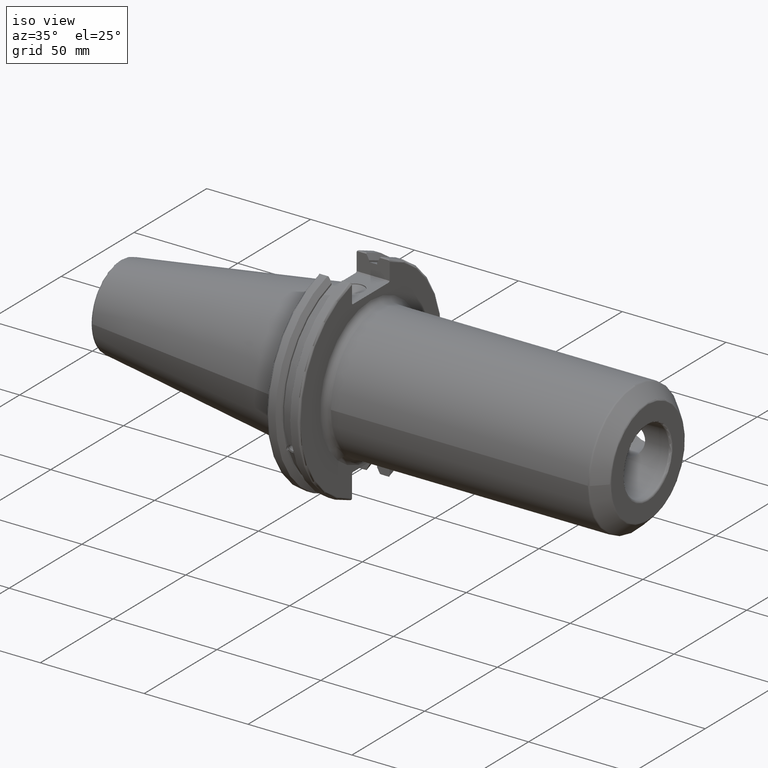
[diagram: clean part render]
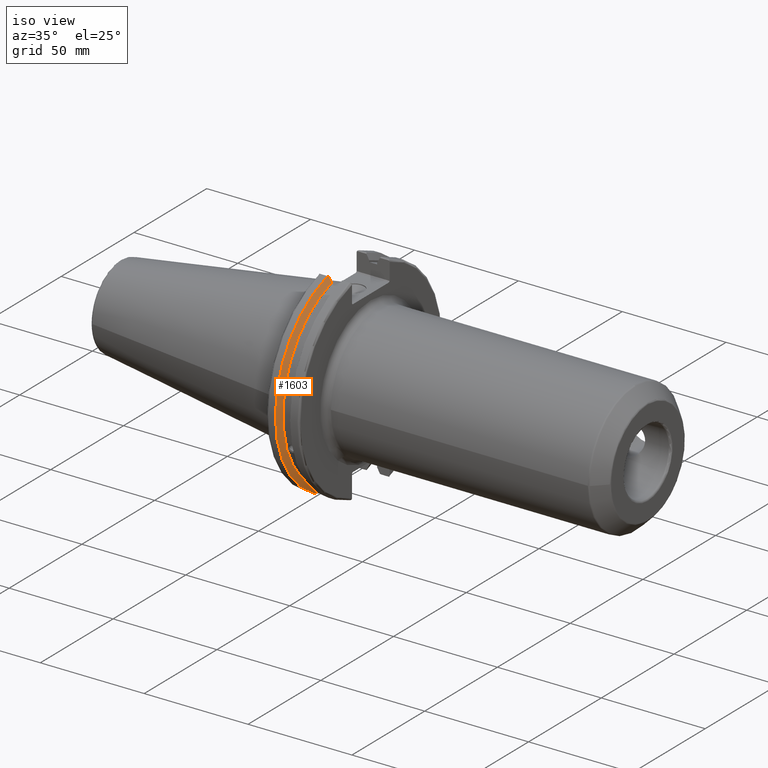
[diagram: same view with one face highlighted and labeled with its STEP entity id]
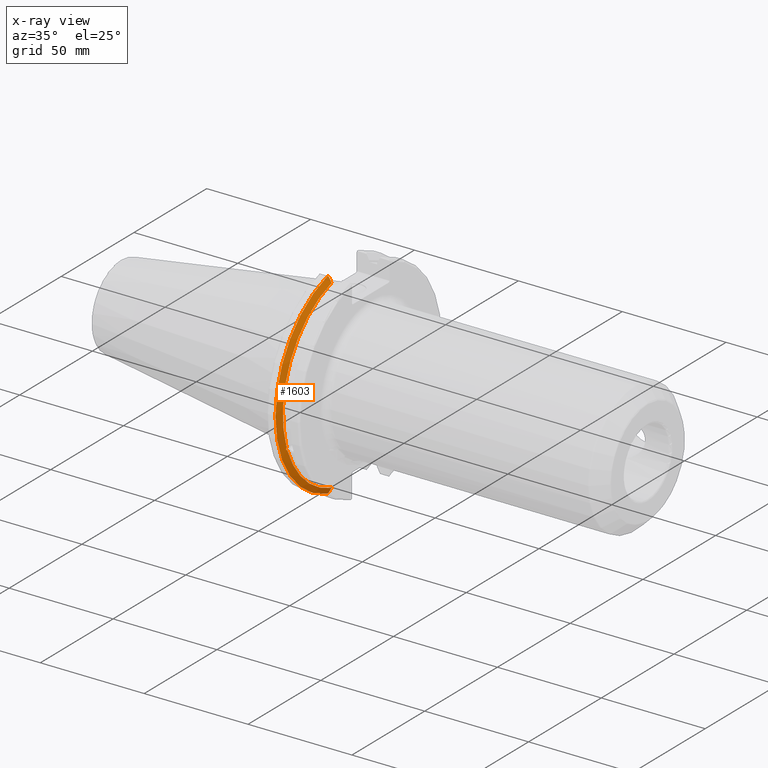
[diagram: x-ray of the same camera — body ghosted, the highlighted face saturated]
A machine part, iso view. The second image highlights one B-rep face of the part: STEP entity #1603.
The next image is the same camera in x-ray: the body ghosted, the highlighted face saturated — about 0% of this face is hidden behind the body in this view.
In plain terms, the highlighted conical surface has half-angle 60 deg.
Its self-contained STEP definition (entity closure, byte-faithful):
#24=(
BOUNDED_CURVE()
B_SPLINE_CURVE(2,(#3161,#3162,#3163),.UNSPECIFIED.,.F.,.F.)
B_SPLINE_CURVE_WITH_KNOTS((3,3),(0.,0.275823910673799),.UNSPECIFIED.)
CURVE()
GEOMETRIC_REPRESENTATION_ITEM()
RATIONAL_B_SPLINE_CURVE((1.,1.00038235574547,1.00012873636808))
REPRESENTATION_ITEM('')
);
#25=(
BOUNDED_CURVE()
B_SPLINE_CURVE(2,(#3173,#3174,#3175),.UNSPECIFIED.,.F.,.F.)
B_SPLINE_CURVE_WITH_KNOTS((3,3),(0.0558332664508419,0.331657177124507),
 .UNSPECIFIED.)
CURVE()
GEOMETRIC_REPRESENTATION_ITEM()
RATIONAL_B_SPLINE_CURVE((1.00012873636699,1.00038235574223,1.))
REPRESENTATION_ITEM('')
);
#26=(
BOUNDED_CURVE()
B_SPLINE_CURVE(2,(#3208,#3209,#3210),.UNSPECIFIED.,.F.,.F.)
B_SPLINE_CURVE_WITH_KNOTS((3,3),(0.,0.064824047289869),.UNSPECIFIED.)
CURVE()
GEOMETRIC_REPRESENTATION_ITEM()
RATIONAL_B_SPLINE_CURVE((1.,1.00011477674823,1.00019140645925))
REPRESENTATION_ITEM('')
);
#27=(
BOUNDED_CURVE()
B_SPLINE_CURVE(2,(#3216,#3217,#3218),.UNSPECIFIED.,.F.,.F.)
B_SPLINE_CURVE_WITH_KNOTS((3,3),(0.325260944932363,0.390084992222202),
 .UNSPECIFIED.)
CURVE()
GEOMETRIC_REPRESENTATION_ITEM()
RATIONAL_B_SPLINE_CURVE((1.00019140645909,1.00011477674813,1.))
REPRESENTATION_ITEM('')
);
#53=CONICAL_SURFACE('',#1789,47.8172386482472,1.0471975511966);
#198=FACE_OUTER_BOUND('',#311,.T.);
#311=EDGE_LOOP('',(#1448,#1449,#1450,#1451,#1452,#1453,#1454,#1455));
#343=B_SPLINE_CURVE_WITH_KNOTS('',3,(#2703,#2704,#2705,#2706,#2707,#2708,
#2709,#2710,#2711,#2712,#2713,#2714,#2715,#2716),.UNSPECIFIED.,.F.,.F.,
(4,2,2,2,2,2,4),(0.426712868358719,0.441644498666907,0.480313313223131,
0.518982127779354,0.557650942335578,0.596319756891801,0.611251387199989),
 .UNSPECIFIED.);
#593=CIRCLE('',#1708,46.4219772964944);
#615=CIRCLE('',#1755,49.2125);
#627=CIRCLE('',#1790,46.4219772964944);
#690=VERTEX_POINT('',#2700);
#691=VERTEX_POINT('',#2702);
#708=VERTEX_POINT('',#2793);
#768=VERTEX_POINT('',#3158);
#769=VERTEX_POINT('',#3160);
#772=VERTEX_POINT('',#3172);
#776=VERTEX_POINT('',#3206);
#777=VERTEX_POINT('',#3212);
#866=EDGE_CURVE('',#691,#690,#343,.T.);
#889=EDGE_CURVE('',#691,#708,#593,.T.);
#969=EDGE_CURVE('',#769,#768,#24,.T.);
#975=EDGE_CURVE('',#772,#708,#25,.T.);
#983=EDGE_CURVE('',#776,#768,#26,.T.);
#985=EDGE_CURVE('',#776,#777,#615,.T.);
#986=EDGE_CURVE('',#772,#777,#27,.T.);
#1019=EDGE_CURVE('',#769,#690,#627,.T.);
#1448=ORIENTED_EDGE('',*,*,#866,.T.);
#1449=ORIENTED_EDGE('',*,*,#1019,.F.);
#1450=ORIENTED_EDGE('',*,*,#969,.T.);
#1451=ORIENTED_EDGE('',*,*,#983,.F.);
#1452=ORIENTED_EDGE('',*,*,#985,.T.);
#1453=ORIENTED_EDGE('',*,*,#986,.F.);
#1454=ORIENTED_EDGE('',*,*,#975,.T.);
#1455=ORIENTED_EDGE('',*,*,#889,.F.);
#1603=ADVANCED_FACE('',(#198),#53,.T.);
#1708=AXIS2_PLACEMENT_3D('',#2794,#1981,#1982);
#1755=AXIS2_PLACEMENT_3D('',#3214,#2118,#2119);
#1789=AXIS2_PLACEMENT_3D('',#3311,#2201,#2202);
#1790=AXIS2_PLACEMENT_3D('',#3312,#2203,#2204);
#1981=DIRECTION('center_axis',(1.,0.,0.));
#1982=DIRECTION('ref_axis',(0.,0.,-1.));
#2118=DIRECTION('center_axis',(1.,0.,0.));
#2119=DIRECTION('ref_axis',(0.,0.,-1.));
#2201=DIRECTION('center_axis',(-1.,0.,0.));
#2202=DIRECTION('ref_axis',(0.,-1.,-1.22464679914735E-16));
#2203=DIRECTION('center_axis',(1.,0.,0.));
#2204=DIRECTION('ref_axis',(0.,0.,-1.));
#2700=CARTESIAN_POINT('',(9.2191,-43.9096390749305,-15.0646464421033));
#2702=CARTESIAN_POINT('',(9.2191,-43.3201030900029,-16.684383248648));
#2703=CARTESIAN_POINT('Ctrl Pts',(9.2191,-43.3201030900029,-16.6843832486479));
#2704=CARTESIAN_POINT('Ctrl Pts',(9.20211843903392,-43.3613106941341,-16.6592273018006));
#2705=CARTESIAN_POINT('Ctrl Pts',(9.18608675403322,-43.4012416983557,-16.6326763251437));
#2706=CARTESIAN_POINT('Ctrl Pts',(9.13238673845037,-43.5391037343221,-16.5325130832406));
#2707=CARTESIAN_POINT('Ctrl Pts',(9.09621610663555,-43.6406982153491,-16.4411807953719));
#2708=CARTESIAN_POINT('Ctrl Pts',(9.04690868251975,-43.8110833825827,-16.2291323464527));
#2709=CARTESIAN_POINT('Ctrl Pts',(9.0341,-43.8794096049168,-16.10796730316));
#2710=CARTESIAN_POINT('Ctrl Pts',(9.0341,-43.9675796948952,-15.8657219718732));
#2711=CARTESIAN_POINT('Ctrl Pts',(9.04690868251975,-43.9931221605125,-15.7289849146254));
#2712=CARTESIAN_POINT('Ctrl Pts',(9.09621610663555,-43.9989016655819,-15.4570249042868));
#2713=CARTESIAN_POINT('Ctrl Pts',(9.13238673845037,-43.9797830409458,-15.3217566390708));
#2714=CARTESIAN_POINT('Ctrl Pts',(9.18608675403322,-43.9385582852181,-15.1564111356409));
#2715=CARTESIAN_POINT('Ctrl Pts',(9.20211843903392,-43.9250360001461,-15.1104047527575));
#2716=CARTESIAN_POINT('Ctrl Pts',(9.2191,-43.9096390749305,-15.0646464421033));
#2793=CARTESIAN_POINT('',(9.2191,-12.95,-44.5791147973604));
#2794=CARTESIAN_POINT('Origin',(9.2191,0.,0.));
#3158=CARTESIAN_POINT('',(7.88638960562424,-12.95,46.9780755322918));
#3160=CARTESIAN_POINT('',(9.2191,-12.95,44.5791147973604));
#3161=CARTESIAN_POINT('Ctrl Pts',(9.2191,-12.95,44.5791147973604));
#3162=CARTESIAN_POINT('Ctrl Pts',(8.57020449054213,-12.95,45.7494966802443));
#3163=CARTESIAN_POINT('Ctrl Pts',(7.88638960562424,-12.95,46.9780755322918));
#3172=CARTESIAN_POINT('',(7.88638960562425,-12.95,-46.9780755322917));
#3173=CARTESIAN_POINT('Ctrl Pts',(7.88638960562425,-12.95,-46.9780755322917));
#3174=CARTESIAN_POINT('Ctrl Pts',(8.5702044905427,-12.95,-45.7494966802433));
#3175=CARTESIAN_POINT('Ctrl Pts',(9.2191,-12.95,-44.5791147973604));
#3206=CARTESIAN_POINT('',(7.60799096595127,-13.4317035994433,47.3440544806494));
#3208=CARTESIAN_POINT('Ctrl Pts',(7.60799096595127,-13.4317035994433,47.3440544806494));
#3209=CARTESIAN_POINT('Ctrl Pts',(7.74826896663813,-13.1896660169967,47.1601640966265));
#3210=CARTESIAN_POINT('Ctrl Pts',(7.88638960562424,-12.95,46.9780755322918));
#3212=CARTESIAN_POINT('',(7.60799096595127,-13.4317035994433,-47.3440544806494));
#3214=CARTESIAN_POINT('Origin',(7.60799096595127,0.,0.));
#3216=CARTESIAN_POINT('Ctrl Pts',(7.88638960562425,-12.95,-46.9780755322917));
#3217=CARTESIAN_POINT('Ctrl Pts',(7.74826896663813,-13.1896660169967,-47.1601640966265));
#3218=CARTESIAN_POINT('Ctrl Pts',(7.60799096595127,-13.4317035994433,-47.3440544806494));
#3311=CARTESIAN_POINT('Origin',(8.41354548297563,0.,0.));
#3312=CARTESIAN_POINT('Origin',(9.2191,0.,0.));